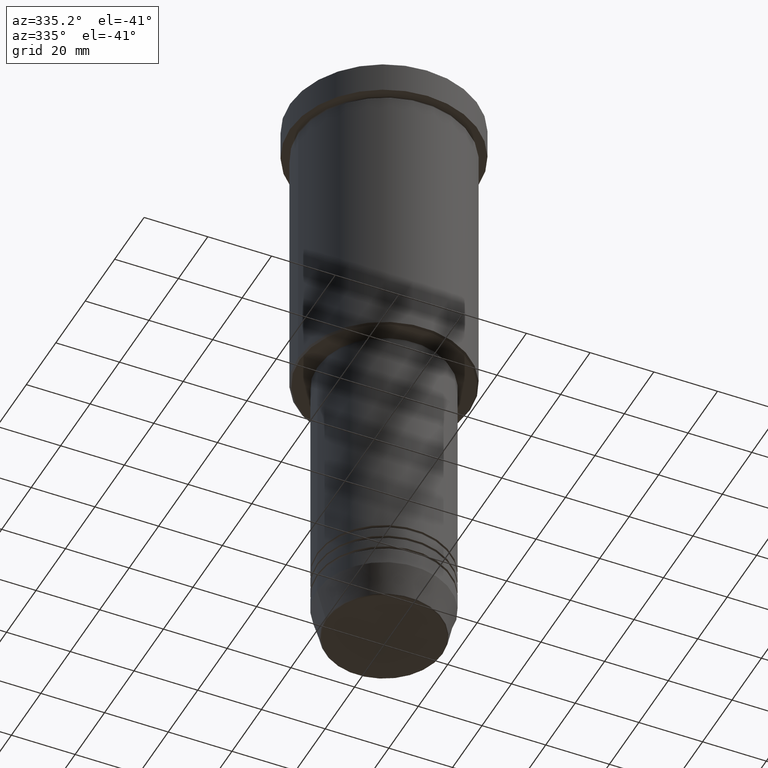
[diagram: clean part render]
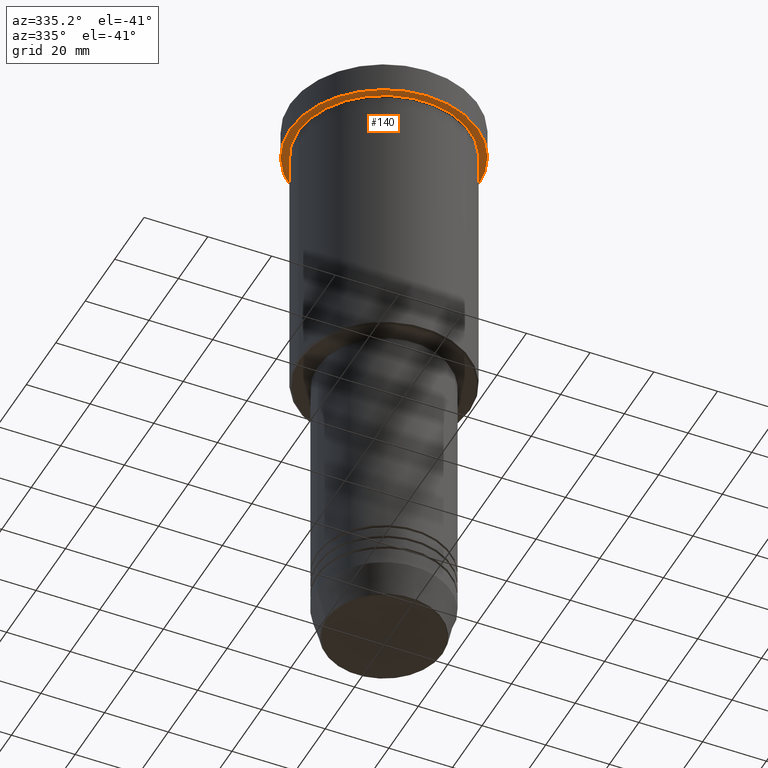
[diagram: same view with one face highlighted and labeled with its STEP entity id]
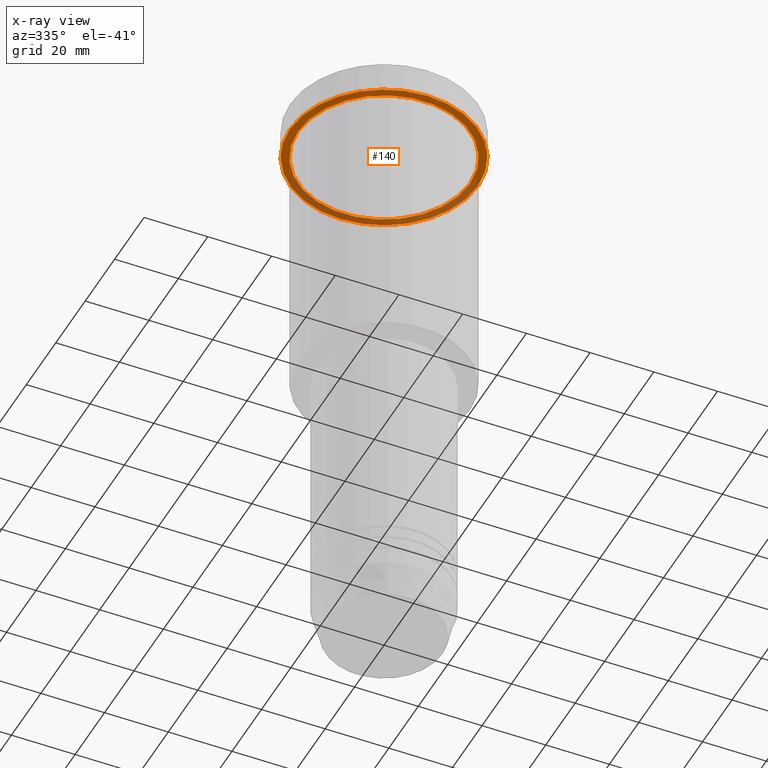
[diagram: x-ray of the same camera — body ghosted, the highlighted face saturated]
A machine part, auxiliary view. The second image highlights one B-rep face of the part: STEP entity #140.
The next image is the same camera in x-ray: the body ghosted, the highlighted face saturated — about 39% of this face is hidden behind the body in this view.
In plain terms, the highlighted planar face has unit normal (0, 0, -1).
Its self-contained STEP definition (entity closure, byte-faithful):
#5 = DIRECTION ( 'NONE',  ( -0.000000000000000000, -0.000000000000000000, 1.000000000000000000 ) ) ;
#9 = AXIS2_PLACEMENT_3D ( 'NONE', #167, #714, #1012 ) ;
#10 = CIRCLE ( 'NONE', #606, 27.00000000000000355 ) ;
#15 = CARTESIAN_POINT ( 'NONE',  ( 0.000000000000000000, 0.000000000000000000, -9.999999999999992895 ) ) ;
#26 = CARTESIAN_POINT ( 'NONE',  ( 27.00000000000000355, 3.306546357697854128E-15, -9.999999999999992895 ) ) ;
#46 = CARTESIAN_POINT ( 'NONE',  ( 29.50000000000000000, 0.000000000000000000, -9.999999999999992895 ) ) ;
#51 = CIRCLE ( 'NONE', #1096, 27.00000000000000355 ) ;
#140 = ADVANCED_FACE ( 'NONE', ( #787, #978 ), #351, .T. ) ;
#167 = CARTESIAN_POINT ( 'NONE',  ( 0.000000000000000000, 29.50000000000000000, -9.999999999999992895 ) ) ;
#229 = EDGE_CURVE ( 'NONE', #1070, #1029, #51, .T. ) ;
#234 = CIRCLE ( 'NONE', #270, 29.50000000000000000 ) ;
#261 = DIRECTION ( 'NONE',  ( -0.000000000000000000, -0.000000000000000000, 1.000000000000000000 ) ) ;
#270 = AXIS2_PLACEMENT_3D ( 'NONE', #15, #555, #917 ) ;
#314 = ORIENTED_EDGE ( 'NONE', *, *, #229, .T. ) ;
#334 = DIRECTION ( 'NONE',  ( 1.000000000000000000, 0.000000000000000000, 0.000000000000000000 ) ) ;
#350 = CARTESIAN_POINT ( 'NONE',  ( 0.000000000000000000, 0.000000000000000000, -9.999999999999992895 ) ) ;
#351 = PLANE ( 'NONE',  #9 ) ;
#360 = ORIENTED_EDGE ( 'NONE', *, *, #954, .F. ) ;
#464 = EDGE_CURVE ( 'NONE', #1029, #1070, #10, .T. ) ;
#468 = EDGE_CURVE ( 'NONE', #1145, #1013, #586, .T. ) ;
#521 = DIRECTION ( 'NONE',  ( -0.000000000000000000, -0.000000000000000000, 1.000000000000000000 ) ) ;
#536 = DIRECTION ( 'NONE',  ( -1.000000000000000000, 0.000000000000000000, 0.000000000000000000 ) ) ;
#555 = DIRECTION ( 'NONE',  ( -0.000000000000000000, -0.000000000000000000, 1.000000000000000000 ) ) ;
#586 = CIRCLE ( 'NONE', #745, 29.50000000000000000 ) ;
#597 = ORIENTED_EDGE ( 'NONE', *, *, #464, .T. ) ;
#606 = AXIS2_PLACEMENT_3D ( 'NONE', #692, #521, #536 ) ;
#621 = EDGE_LOOP ( 'NONE', ( #360, #1136 ) ) ;
#632 = CARTESIAN_POINT ( 'NONE',  ( -27.00000000000000355, 0.000000000000000000, -9.999999999999992895 ) ) ;
#692 = CARTESIAN_POINT ( 'NONE',  ( 0.000000000000000000, 0.000000000000000000, -9.999999999999992895 ) ) ;
#714 = DIRECTION ( 'NONE',  ( 0.000000000000000000, 0.000000000000000000, -1.000000000000000000 ) ) ;
#745 = AXIS2_PLACEMENT_3D ( 'NONE', #350, #261, #334 ) ;
#756 = CARTESIAN_POINT ( 'NONE',  ( -29.50000000000000000, 3.612708057484691604E-15, -9.999999999999992895 ) ) ;
#787 = FACE_BOUND ( 'NONE', #991, .T. ) ;
#826 = CARTESIAN_POINT ( 'NONE',  ( 0.000000000000000000, 0.000000000000000000, -9.999999999999992895 ) ) ;
#917 = DIRECTION ( 'NONE',  ( 1.000000000000000000, 0.000000000000000000, 0.000000000000000000 ) ) ;
#954 = EDGE_CURVE ( 'NONE', #1013, #1145, #234, .T. ) ;
#978 = FACE_OUTER_BOUND ( 'NONE', #621, .T. ) ;
#991 = EDGE_LOOP ( 'NONE', ( #314, #597 ) ) ;
#1012 = DIRECTION ( 'NONE',  ( -1.000000000000000000, 0.000000000000000000, -0.000000000000000000 ) ) ;
#1013 = VERTEX_POINT ( 'NONE', #46 ) ;
#1029 = VERTEX_POINT ( 'NONE', #26 ) ;
#1070 = VERTEX_POINT ( 'NONE', #632 ) ;
#1091 = DIRECTION ( 'NONE',  ( -1.000000000000000000, 0.000000000000000000, 0.000000000000000000 ) ) ;
#1096 = AXIS2_PLACEMENT_3D ( 'NONE', #826, #5, #1091 ) ;
#1136 = ORIENTED_EDGE ( 'NONE', *, *, #468, .F. ) ;
#1145 = VERTEX_POINT ( 'NONE', #756 ) ;